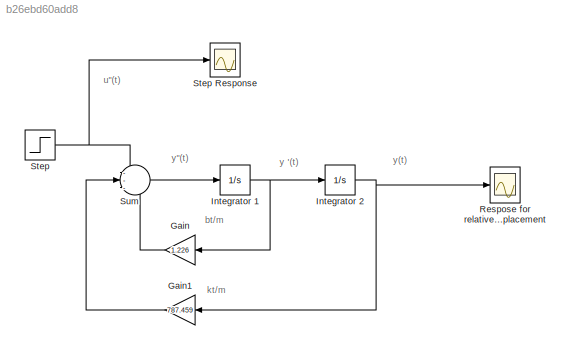
MODEL slx_b26ebd60add8
KIND model
CONFIG AbsTol = auto
CONFIG FixedStep = auto
CONFIG MaxStep = auto
CONFIG MinStep = auto
CONFIG RelTol = 1e-3
CONFIG SampleTimeConstraint = Unconstrained
CONFIG Solver = ode45
CONFIG SolverMode = Auto
CONFIG SolverName = ode45
CONFIG StartTime = 0.0
CONFIG StopTime = 50
BLOCK [Gain] Gain
  Gain = 1.226
  OutDataTypeStr = Inherit: Inherit via internal rule
  ParamDataTypeStr = Inherit: Inherit via internal rule
  SaturateOnIntegerOverflow = off
BLOCK [Gain] Gain1
  Gain = 787.459
  OutDataTypeStr = Inherit: Inherit via internal rule
  ParamDataTypeStr = Inherit: Inherit via internal rule
  SaturateOnIntegerOverflow = off
BLOCK [Integrator] Integrator 1
  Ports = [1, 1]
BLOCK [Integrator] Integrator 2 
  Ports = [1, 1]
BLOCK [Scope] Respose for relative displacement
  Ports = [1]
  ScopeSpecificationString = Simulink.scopes.TimeScopeBlockCfg('CurrentConfiguration', extmgr.ConfigurationSet(extmgr.Configuration('Core','General UI',true,'FigureColor',[0.941176470588235 0.941176470588235 0.941176470588235]),extmgr.Configuration('Core','Source UI',true),extmgr.Configuration('Sources','WiredSimulink',true,'SampleTime','0.01','DataLoggingVariableName','ScopeData1','DataLoggingSaveFormat','Array'),extmgr.Conf...<+1701ch>
BLOCK [Step] Step
  After = 8
  SampleTime = 0
  Time = 0.01
BLOCK [Scope] Step Response
  Ports = [1]
  ScopeSpecificationString = Simulink.scopes.TimeScopeBlockCfg('CurrentConfiguration', extmgr.ConfigurationSet(extmgr.Configuration('Core','General UI',true,'FigureColor',[0.941176470588235 0.941176470588235 0.941176470588235]),extmgr.Configuration('Core','Source UI',true),extmgr.Configuration('Sources','WiredSimulink',true,'SampleTime','0.01'),extmgr.Configuration('Visuals','Time Domain',true,'SerializedDisplays',{struct('Mi...<+1586ch>
BLOCK [Sum] Sum
  IconShape = round
  InputSameDT = off
  Inputs = ---
  OutDataTypeStr = Inherit: Inherit via internal rule
  Ports = [3, 1]
  SaturateOnIntegerOverflow = off
ANNOTATION (root): bt/m
ANNOTATION (root): kt/m
ANNOTATION (root): u"(t)
ANNOTATION (root): y '(t)
ANNOTATION (root): y"(t)
ANNOTATION (root): y(t)
LINE Gain1:1 -> Sum:2
LINE Gain:1 -> Sum:3
NET Integrator 1:1 -> Gain:1, Integrator 2 :1
NET Integrator 2 :1 -> Gain1:1, Respose for relative displacement:1
NET Step:1 -> Step Response:1, Sum:1
LINE Sum:1 -> Integrator 1:1
note: NET lines group one-source signal fan-out (src -> all destinations, sorted); 1:1 wires keep LINE
